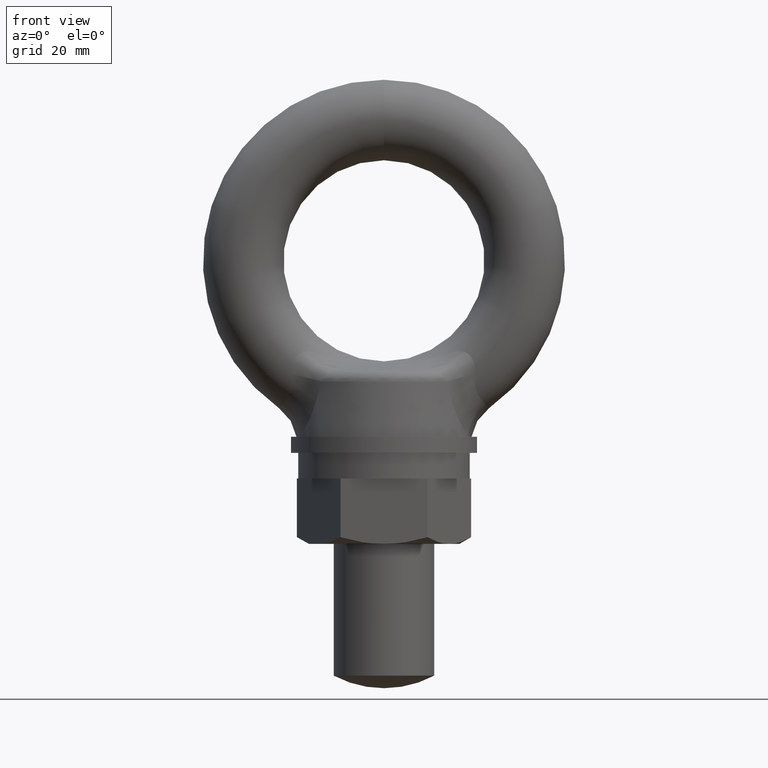
[diagram: clean part render]
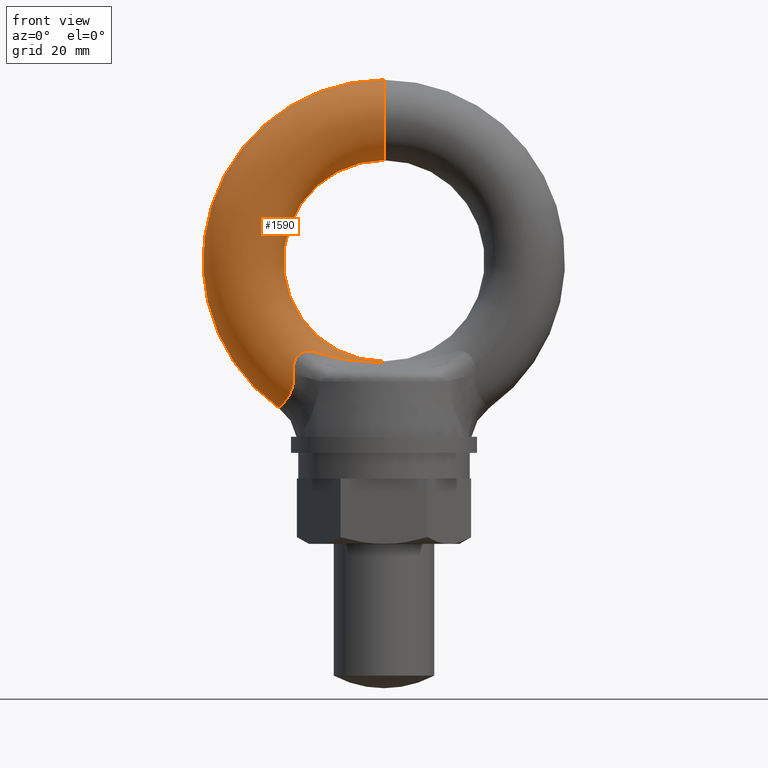
[diagram: same view with one face highlighted and labeled with its STEP entity id]
A machine part, front view. The second image highlights one B-rep face of the part: STEP entity #1590.
In plain terms, the highlighted toroidal blend (fillet) surface has major radius 28 mm and minor (blend) radius 8 mm.
Its self-contained STEP definition (entity closure, byte-faithful):
#1559 = EDGE_CURVE ( 'NONE', #1601, #1560, #2072, .T. ) ;
#1560 = VERTEX_POINT ( 'NONE', #2071 ) ;
#1561 = ORIENTED_EDGE ( 'NONE', *, *, #1575, .T. ) ;
#1575 = EDGE_CURVE ( 'NONE', #1560, #1576, #2260, .T. ) ;
#1576 = VERTEX_POINT ( 'NONE', #2259 ) ;
#1577 = ORIENTED_EDGE ( 'NONE', *, *, #1578, .T. ) ;
#1578 = EDGE_CURVE ( 'NONE', #1576, #1579, #2219, .T. ) ;
#1579 = VERTEX_POINT ( 'NONE', #2218 ) ;
#1580 = ORIENTED_EDGE ( 'NONE', *, *, #1581, .T. ) ;
#1581 = EDGE_CURVE ( 'NONE', #1579, #1582, #2209, .T. ) ;
#1582 = VERTEX_POINT ( 'NONE', #2194 ) ;
#1590 = ADVANCED_FACE ( 'NONE', ( #2504 ), #2288, .T. ) ;
#1591 = EDGE_LOOP ( 'NONE', ( #1592, #1596, #1599, #1602, #1561, #1577, #1580, #1615 ) ) ;
#1592 = ORIENTED_EDGE ( 'NONE', *, *, #1593, .F. ) ;
#1593 = EDGE_CURVE ( 'NONE', #1594, #1595, #2278, .T. ) ;
#1594 = VERTEX_POINT ( 'NONE', #2273 ) ;
#1595 = VERTEX_POINT ( 'NONE', #2272 ) ;
#1596 = ORIENTED_EDGE ( 'NONE', *, *, #1597, .T. ) ;
#1597 = EDGE_CURVE ( 'NONE', #1594, #1598, #2284, .T. ) ;
#1598 = VERTEX_POINT ( 'NONE', #2279 ) ;
#1599 = ORIENTED_EDGE ( 'NONE', *, *, #1600, .T. ) ;
#1600 = EDGE_CURVE ( 'NONE', #1598, #1601, #2501, .T. ) ;
#1601 = VERTEX_POINT ( 'NONE', #2502 ) ;
#1602 = ORIENTED_EDGE ( 'NONE', *, *, #1559, .T. ) ;
#1615 = ORIENTED_EDGE ( 'NONE', *, *, #1616, .F. ) ;
#1616 = EDGE_CURVE ( 'NONE', #1595, #1582, #2465, .T. ) ;
#2050 = CARTESIAN_POINT ( 'NONE',  ( -18.07603648372269600, -7.945372300636390300, -22.59188056541010100 ) ) ;
#2051 = CARTESIAN_POINT ( 'NONE',  ( -18.04054247296236100, -7.917021695497933100, -22.92937936844069600 ) ) ;
#2052 = CARTESIAN_POINT ( 'NONE',  ( -18.02294308099864400, -7.875853099239254400, -23.26748662458160800 ) ) ;
#2053 = CARTESIAN_POINT ( 'NONE',  ( -18.03220608410685300, -7.758872730580870700, -23.93743834888671500 ) ) ;
#2054 = CARTESIAN_POINT ( 'NONE',  ( -18.05958299474205500, -7.682464375572249300, -24.27030221711562800 ) ) ;
#2055 = CARTESIAN_POINT ( 'NONE',  ( -18.15940386058476000, -7.491003069110534300, -24.90757987614506800 ) ) ;
#2056 = CARTESIAN_POINT ( 'NONE',  ( -18.23158240396274400, -7.375861049605298100, -25.21381516144220900 ) ) ;
#2057 = CARTESIAN_POINT ( 'NONE',  ( -18.41493576542328000, -7.101233061930403600, -25.80065298911719300 ) ) ;
#2058 = CARTESIAN_POINT ( 'NONE',  ( -18.52675622652377600, -6.940743853943771100, -26.08212912476770700 ) ) ;
#2059 = CARTESIAN_POINT ( 'NONE',  ( -18.89647459336574500, -6.400572332127117300, -26.86654441111974700 ) ) ;
#2060 = CARTESIAN_POINT ( 'NONE',  ( -19.18056745787588800, -5.971913125181020900, -27.30223167005001300 ) ) ;
#2061 = CARTESIAN_POINT ( 'NONE',  ( -19.59844567961869200, -5.230220122879413400, -27.86015683620673000 ) ) ;
#2062 = CARTESIAN_POINT ( 'NONE',  ( -19.73498437145486400, -4.969169817883323700, -28.02760433356973000 ) ) ;
#2063 = CARTESIAN_POINT ( 'NONE',  ( -19.99258515031222700, -4.426770075522743000, -28.32748653070828800 ) ) ;
#2064 = CARTESIAN_POINT ( 'NONE',  ( -20.11427152996070700, -4.144393324560699200, -28.46066157516942100 ) ) ;
#2065 = CARTESIAN_POINT ( 'NONE',  ( -20.22635143677735000, -3.850677136497690200, -28.57893508878720100 ) ) ;
#2071 = CARTESIAN_POINT ( 'NONE',  ( -18.07603648372269600, -7.945372300636390300, -22.59188056541010100 ) ) ;
#2072 = B_SPLINE_CURVE_WITH_KNOTS ( 'NONE', 3,
 ( #2065, #2064, #2063, #2062, #2061, #2060, #2059, #2058, #2057, #2056, #2055, #2054, #2053, #2052, #2051, #2050 ),
 .UNSPECIFIED., .F., .F.,
 ( 4, 2, 2, 2, 2, 2, 2, 4 ),
 ( 0.01610551802902950400, 0.01711428254501621100, 0.01812304706100292100, 0.02014057609297633900, 0.02114934060896304900, 0.02215810512494975600, 0.02316686964093646700, 0.02417563415692317700 ),
 .UNSPECIFIED. ) ;
#2194 = CARTESIAN_POINT ( 'NONE',  ( 0.0000000000000000000, 9.796850830579018100E-016, -20.00000000000000000 ) ) ;
#2195 = DIRECTION ( 'NONE',  ( 0.0000000000000000000, 0.0000000000000000000, 1.000000000000000000 ) ) ;
#2196 = DIRECTION ( 'NONE',  ( -1.000000000000000000, 0.0000000000000000000, 0.0000000000000000000 ) ) ;
#2197 = CARTESIAN_POINT ( 'NONE',  ( 0.0000000000000000000, 0.0000000000000000000, -28.00000000000000000 ) ) ;
#2198 = AXIS2_PLACEMENT_3D ( 'NONE', #2197, #2196, #2195 ) ;
#2199 = CARTESIAN_POINT ( 'NONE',  ( -6.801776097265342600E-013, -1.648912988659337200, -20.17177632180642600 ) ) ;
#2200 = CARTESIAN_POINT ( 'NONE',  ( -0.2927174952643083500, -1.648912988659391600, -20.17177632180643000 ) ) ;
#2201 = CARTESIAN_POINT ( 'NONE',  ( -0.5844058307862495200, -1.682952176673653500, -20.17240612736618000 ) ) ;
#2202 = CARTESIAN_POINT ( 'NONE',  ( -1.158679247754199400, -1.790291525782435900, -20.17148670969874800 ) ) ;
#2203 = CARTESIAN_POINT ( 'NONE',  ( -1.442697845560770200, -1.861999122008241200, -20.16971613795676200 ) ) ;
#2204 = CARTESIAN_POINT ( 'NONE',  ( -2.288186762667789900, -2.095962064465069400, -20.15610451816338500 ) ) ;
#2205 = CARTESIAN_POINT ( 'NONE',  ( -2.844284425707784600, -2.275894574762710400, -20.13577273363174000 ) ) ;
#2206 = CARTESIAN_POINT ( 'NONE',  ( -4.507113680566904500, -2.822904474455817200, -20.03377866517443800 ) ) ;
#2207 = CARTESIAN_POINT ( 'NONE',  ( -5.607621948508660000, -3.204019384009087400, -19.91148190844952000 ) ) ;
#2208 = CARTESIAN_POINT ( 'NONE',  ( -7.792840797011284500, -3.963240333849474600, -19.57153100779552800 ) ) ;
#2209 = CIRCLE ( 'NONE', #2198, 8.000000000000000000 ) ;
#2218 = CARTESIAN_POINT ( 'NONE',  ( -6.801776097265342600E-013, -1.648912988659337200, -20.17177632180642600 ) ) ;
#2219 = B_SPLINE_CURVE_WITH_KNOTS ( 'NONE', 3,
 ( #2255, #2254, #2253, #2252, #2208, #2207, #2206, #2205, #2204, #2203, #2202, #2201, #2200, #2199 ),
 .UNSPECIFIED., .F., .F.,
 ( 4, 2, 2, 2, 2, 2, 4 ),
 ( 0.0000000000000000000, 0.003500089843752328500, 0.007000179687504657000, 0.01050026953125698600, 0.01225031445313314900, 0.01312533691407123200, 0.01400035937500931400 ),
 .UNSPECIFIED. ) ;
#2220 = CARTESIAN_POINT ( 'NONE',  ( -13.16581114616844100, -5.822891640927250200, -18.26337593279295000 ) ) ;
#2221 = CARTESIAN_POINT ( 'NONE',  ( -13.49608025271707000, -5.933135930324516100, -18.16954458781173500 ) ) ;
#2222 = CARTESIAN_POINT ( 'NONE',  ( -13.82544064071039000, -6.053619954093565300, -18.08939103995022200 ) ) ;
#2223 = CARTESIAN_POINT ( 'NONE',  ( -14.48640084289624300, -6.316706671593726300, -17.97827653573514100 ) ) ;
#2224 = CARTESIAN_POINT ( 'NONE',  ( -14.81750220859130400, -6.459337599431634700, -17.94770816610432000 ) ) ;
#2225 = CARTESIAN_POINT ( 'NONE',  ( -15.46841800058392600, -6.757654925999480300, -17.97081371513874300 ) ) ;
#2226 = CARTESIAN_POINT ( 'NONE',  ( -15.79371041505116900, -6.916048541418006400, -18.02615464871732000 ) ) ;
#2227 = CARTESIAN_POINT ( 'NONE',  ( -16.25075426370440100, -7.145089189322589200, -18.19840523469892800 ) ) ;
#2228 = CARTESIAN_POINT ( 'NONE',  ( -16.39998693967268700, -7.220948621053674200, -18.27151688570332100 ) ) ;
#2229 = CARTESIAN_POINT ( 'NONE',  ( -16.67968600936423200, -7.363606258302809200, -18.44515517041799100 ) ) ;
#2230 = CARTESIAN_POINT ( 'NONE',  ( -16.81098070684610200, -7.430801401975548600, -18.54565475779688900 ) ) ;
#2231 = CARTESIAN_POINT ( 'NONE',  ( -17.18029630242248700, -7.618353206800730200, -18.88785364446993100 ) ) ;
#2247 = CARTESIAN_POINT ( 'NONE',  ( -17.39227668821254400, -7.723481714237320400, -19.17235907743152600 ) ) ;
#2248 = CARTESIAN_POINT ( 'NONE',  ( -17.72613025056091700, -7.878836449315238100, -19.79191951133551100 ) ) ;
#2249 = CARTESIAN_POINT ( 'NONE',  ( -17.84987959965029000, -7.930441025987373200, -20.12360288935503400 ) ) ;
#2250 = CARTESIAN_POINT ( 'NONE',  ( -18.02878430504984000, -7.993391866429646200, -20.82156496729872000 ) ) ;
#2251 = CARTESIAN_POINT ( 'NONE',  ( -18.08006779931692900, -8.003476655799941500, -21.17334052725825800 ) ) ;
#2252 = CARTESIAN_POINT ( 'NONE',  ( -8.874770829690676900, -4.343217868695373500, -19.35477693205997000 ) ) ;
#2253 = CARTESIAN_POINT ( 'NONE',  ( -11.02624808514249800, -5.094259217671004900, -18.85268854059859900 ) ) ;
#2254 = CARTESIAN_POINT ( 'NONE',  ( -12.09568278882729900, -5.465681299482348300, -18.56740552890373800 ) ) ;
#2255 = CARTESIAN_POINT ( 'NONE',  ( -13.16581114616844100, -5.822891640927250200, -18.26337593279295000 ) ) ;
#2256 = CARTESIAN_POINT ( 'NONE',  ( -18.12260647304777500, -7.994548373312367700, -21.87993876361077000 ) ) ;
#2257 = CARTESIAN_POINT ( 'NONE',  ( -18.11356389061676700, -7.975347067419112300, -22.23504698598968300 ) ) ;
#2258 = CARTESIAN_POINT ( 'NONE',  ( -18.07603648372269600, -7.945372300636390300, -22.59188056541010100 ) ) ;
#2259 = CARTESIAN_POINT ( 'NONE',  ( -13.16581114616844100, -5.822891640927250200, -18.26337593279295000 ) ) ;
#2260 = B_SPLINE_CURVE_WITH_KNOTS ( 'NONE', 3,
 ( #2258, #2257, #2256, #2251, #2250, #2249, #2248, #2247, #2231, #2230, #2229, #2228, #2227, #2226, #2225, #2224, #2223, #2222, #2221, #2220 ),
 .UNSPECIFIED., .F., .F.,
 ( 4, 2, 2, 2, 2, 2, 2, 2, 2, 4 ),
 ( 0.0000000000000000000, 0.001061884085914531300, 0.002123768171829062500, 0.003185652257743594000, 0.004247536343658125100, 0.004778478386615393400, 0.005309420429572662600, 0.006371304515487208000, 0.007433188601401748100, 0.008495072687316288300 ),
 .UNSPECIFIED. ) ;
#2272 = CARTESIAN_POINT ( 'NONE',  ( 2.449212707644754900E-015, 0.0000000000000000000, 20.00000000000000000 ) ) ;
#2273 = CARTESIAN_POINT ( 'NONE',  ( 4.408582873760558900E-015, 0.0000000000000000000, 36.00000000000000700 ) ) ;
#2274 = DIRECTION ( 'NONE',  ( -1.224606353822377000E-016, 0.0000000000000000000, -1.000000000000000000 ) ) ;
#2275 = DIRECTION ( 'NONE',  ( 1.000000000000000000, 0.0000000000000000000, -1.224606353822377300E-016 ) ) ;
#2276 = CARTESIAN_POINT ( 'NONE',  ( 3.428897790702656300E-015, 0.0000000000000000000, 28.00000000000000000 ) ) ;
#2277 = AXIS2_PLACEMENT_3D ( 'NONE', #2276, #2275, #2274 ) ;
#2278 = CIRCLE ( 'NONE', #2277, 8.000000000000000000 ) ;
#2279 = CARTESIAN_POINT ( 'NONE',  ( -20.82274396233959700, -4.779909794809850600E-016, -29.36687477207695500 ) ) ;
#2280 = DIRECTION ( 'NONE',  ( 0.0000000000000000000, 0.0000000000000000000, -1.000000000000000000 ) ) ;
#2281 = DIRECTION ( 'NONE',  ( 0.0000000000000000000, -1.000000000000000000, 0.0000000000000000000 ) ) ;
#2282 = CARTESIAN_POINT ( 'NONE',  ( 0.0000000000000000000, 0.0000000000000000000, 0.0000000000000000000 ) ) ;
#2283 = AXIS2_PLACEMENT_3D ( 'NONE', #2282, #2281, #2280 ) ;
#2284 = CIRCLE ( 'NONE', #2283, 36.00000000000000700 ) ;
#2285 = DIRECTION ( 'NONE',  ( 0.0000000000000000000, 0.0000000000000000000, -1.000000000000000000 ) ) ;
#2286 = DIRECTION ( 'NONE',  ( 0.0000000000000000000, -1.000000000000000000, 0.0000000000000000000 ) ) ;
#2287 = AXIS2_PLACEMENT_3D ( 'NONE', #2503, #2286, #2285 ) ;
#2288 = TOROIDAL_SURFACE ( 'NONE', #2287, 28.00000000000000000, 8.000000000000000000 ) ;
#2462 = DIRECTION ( 'NONE',  ( 0.0000000000000000000, 0.0000000000000000000, -1.000000000000000000 ) ) ;
#2463 = DIRECTION ( 'NONE',  ( 0.0000000000000000000, -1.000000000000000000, 0.0000000000000000000 ) ) ;
#2464 = AXIS2_PLACEMENT_3D ( 'NONE', #2470, #2463, #2462 ) ;
#2465 = CIRCLE ( 'NONE', #2464, 20.00000000000000000 ) ;
#2470 = CARTESIAN_POINT ( 'NONE',  ( 0.0000000000000000000, 9.796850830579018100E-016, 0.0000000000000000000 ) ) ;
#2492 = CARTESIAN_POINT ( 'NONE',  ( -20.22635143677735000, -3.850677136497690200, -28.57893508878720100 ) ) ;
#2493 = CARTESIAN_POINT ( 'NONE',  ( -20.45218448737302100, -3.258859881794897700, -28.81724781712205500 ) ) ;
#2494 = CARTESIAN_POINT ( 'NONE',  ( -20.59603642070353400, -2.638285941380809500, -29.01523389992597400 ) ) ;
#2495 = CARTESIAN_POINT ( 'NONE',  ( -20.73540599022221900, -1.666234829499332100, -29.22248958426969200 ) ) ;
#2496 = CARTESIAN_POINT ( 'NONE',  ( -20.76888547548118400, -1.332880035850257500, -29.27674697320311700 ) ) ;
#2497 = CARTESIAN_POINT ( 'NONE',  ( -20.81241227235394900, -0.6665516782714794300, -29.34876666378846700 ) ) ;
#2498 = CARTESIAN_POINT ( 'NONE',  ( -20.82274396233959400, -0.3333125823818162700, -29.36687477207695100 ) ) ;
#2499 = CARTESIAN_POINT ( 'NONE',  ( -20.82274396233959700, -4.779909794809850600E-016, -29.36687477207695500 ) ) ;
#2501 = B_SPLINE_CURVE_WITH_KNOTS ( 'NONE', 3,
 ( #2499, #2498, #2497, #2496, #2495, #2494, #2493, #2492 ),
 .UNSPECIFIED., .F., .F.,
 ( 4, 2, 2, 4 ),
 ( 0.004061130604967868800, 0.005076329865826367300, 0.006091529126684865800, 0.008121927648401864500 ),
 .UNSPECIFIED. ) ;
#2502 = CARTESIAN_POINT ( 'NONE',  ( -20.22635143677735000, -3.850677136497690200, -28.57893508878720100 ) ) ;
#2503 = CARTESIAN_POINT ( 'NONE',  ( 0.0000000000000000000, 0.0000000000000000000, 0.0000000000000000000 ) ) ;
#2504 = FACE_OUTER_BOUND ( 'NONE', #1591, .T. ) ;